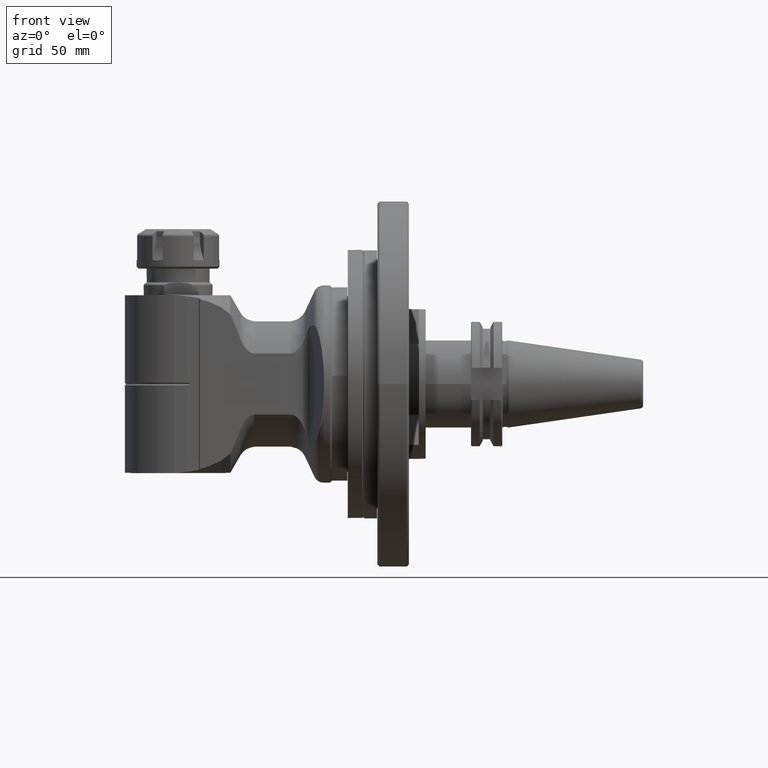
[diagram: clean part render]
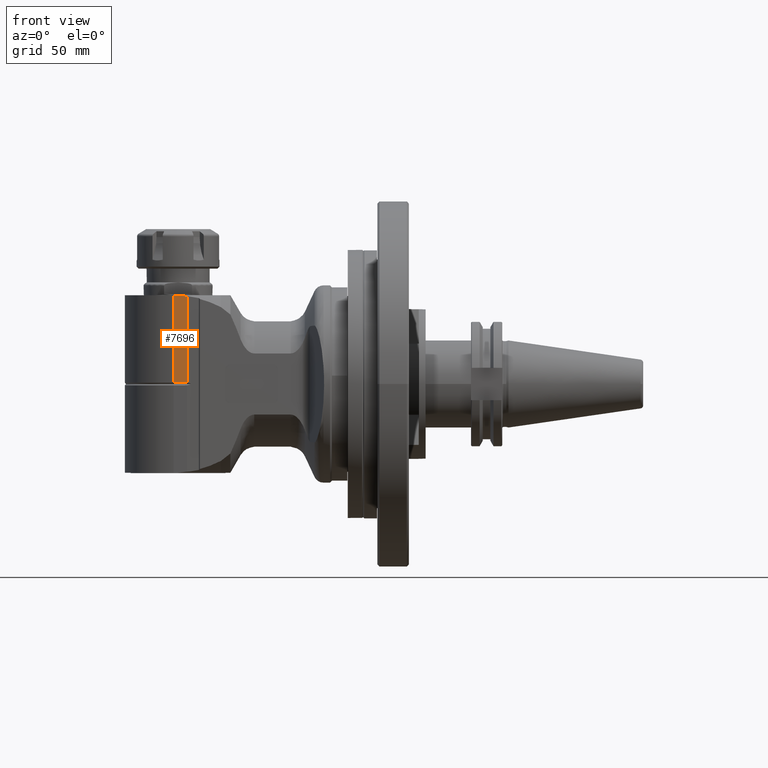
[diagram: same view with one face highlighted and labeled with its STEP entity id]
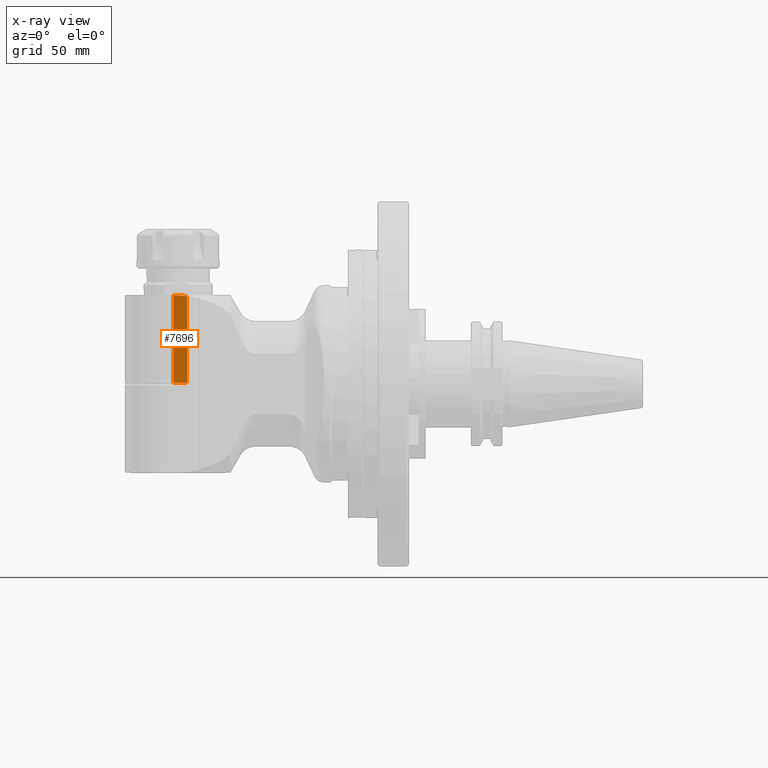
[diagram: x-ray of the same camera — body ghosted, the highlighted face saturated]
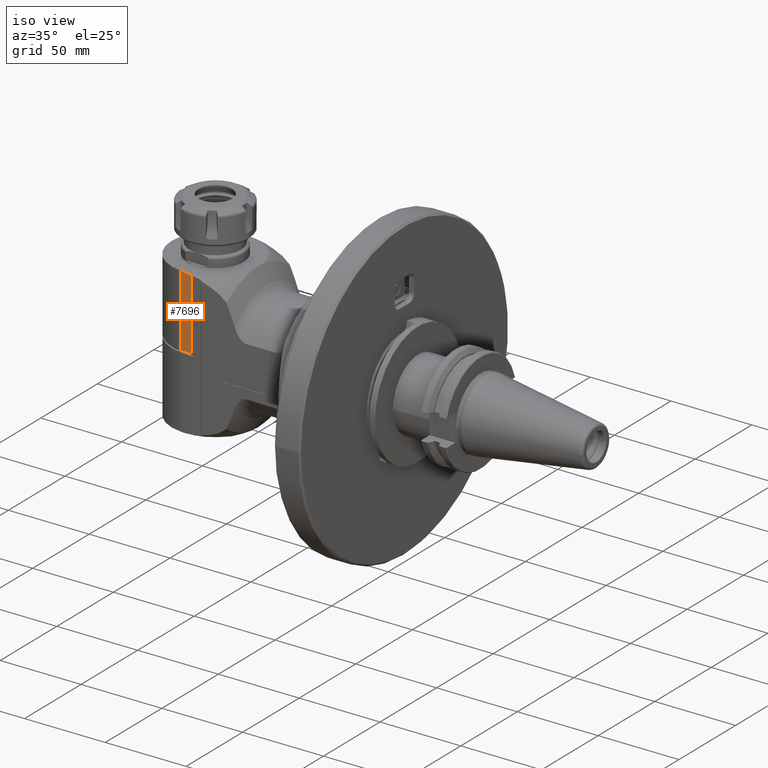
[diagram: same view with one face highlighted and labeled with its STEP entity id]
A machine part, front view. The second image highlights one B-rep face of the part: STEP entity #7696.
The next image is the same camera in x-ray: the body ghosted, the highlighted face saturated — about 0% of this face is hidden behind the body in this view.
A second angle (iso view) of the same face is appended — the face is thin or edge-on in the first view.
In plain terms, the highlighted planar face has unit normal (0.0872, 0.9962, 0).
Its self-contained STEP definition (entity closure, byte-faithful):
#58=ELLIPSE('',#8327,48.4219814319442,3.37928938793093);
#329=(
BOUNDED_CURVE()
B_SPLINE_CURVE(2,(#12290,#12291,#12292),.UNSPECIFIED.,.F.,.F.)
B_SPLINE_CURVE_WITH_KNOTS((3,3),(0.608380908929359,0.707686617776642),
 .UNSPECIFIED.)
CURVE()
GEOMETRIC_REPRESENTATION_ITEM()
RATIONAL_B_SPLINE_CURVE((1.05761844635315,1.05761844635306,1.05608326806202))
REPRESENTATION_ITEM('')
);
#1028=FACE_OUTER_BOUND('',#1517,.T.);
#1517=EDGE_LOOP('',(#5469,#5470,#5471,#5472,#5473,#5474));
#2021=LINE('',#11674,#2586);
#2075=LINE('',#12251,#2640);
#2078=LINE('',#12286,#2643);
#2079=LINE('',#12289,#2644);
#2586=VECTOR('',#9144,1.72459804313427);
#2640=VECTOR('',#9430,0.0779289582461455);
#2643=VECTOR('',#9439,1.74544545571063);
#2644=VECTOR('',#9442,0.236220472442952);
#3184=VERTEX_POINT('',#11669);
#3185=VERTEX_POINT('',#11673);
#3294=VERTEX_POINT('',#12248);
#3295=VERTEX_POINT('',#12250);
#3303=VERTEX_POINT('',#12284);
#3304=VERTEX_POINT('',#12288);
#3961=EDGE_CURVE('',#3185,#3184,#2021,.T.);
#4121=EDGE_CURVE('',#3294,#3295,#2075,.T.);
#4132=EDGE_CURVE('',#3303,#3294,#2078,.T.);
#4133=EDGE_CURVE('',#3303,#3304,#2079,.T.);
#4134=EDGE_CURVE('',#3304,#3185,#329,.T.);
#4135=EDGE_CURVE('',#3184,#3295,#58,.T.);
#5469=ORIENTED_EDGE('',*,*,#4132,.F.);
#5470=ORIENTED_EDGE('',*,*,#4133,.T.);
#5471=ORIENTED_EDGE('',*,*,#4134,.T.);
#5472=ORIENTED_EDGE('',*,*,#3961,.T.);
#5473=ORIENTED_EDGE('',*,*,#4135,.T.);
#5474=ORIENTED_EDGE('',*,*,#4121,.F.);
#7405=PLANE('',#8326);
#7696=ADVANCED_FACE('',(#1028),#7405,.F.);
#8326=AXIS2_PLACEMENT_3D('',#12287,#9440,#9441);
#8327=AXIS2_PLACEMENT_3D('',#12293,#9443,#9444);
#9144=DIRECTION('',(1.32764516878699E-7,-0.999999999999991,2.87918323241197E-9));
#9430=DIRECTION('',(-0.996194698091752,-1.43587821958393E-14,0.0871557427475858));
#9439=DIRECTION('',(2.75663110442E-14,-1.,0.));
#9440=DIRECTION('center_axis',(-0.087155742747664,0.,-0.996194698091745));
#9441=DIRECTION('ref_axis',(0.996194698091745,0.,-0.0871557427476639));
#9442=DIRECTION('',(-0.996194690015305,-1.85333008901101E-7,0.0871558350615505));
#9443=DIRECTION('center_axis',(0.087155742747664,0.,0.996194698091745));
#9444=DIRECTION('ref_axis',(-0.996194698091745,-5.05500958436285E-17,0.087155742747664));
#11669=CARTESIAN_POINT('',(3.2859771380763,-1.74943252039567,1.08267716535433));
#11673=CARTESIAN_POINT('',(3.2859769084351,-0.024834518340376,1.08267717043558));
#11674=CARTESIAN_POINT('',(3.28597690911094,-0.0248344772614409,1.08267716038898));
#12248=CARTESIAN_POINT('',(3.55721279740898,-1.77165354330709,1.0589471200189));
#12250=CARTESIAN_POINT('',(3.4795803823763,-1.77165354330709,1.0657390762563));
#12251=CARTESIAN_POINT('',(3.55721279740898,-1.77165354330709,1.0589471200189));
#12284=CARTESIAN_POINT('',(3.55721279740898,-0.0262080875964252,1.0589471200189));
#12286=CARTESIAN_POINT('',(3.55721279740898,-0.0262080875964252,1.0589471200189));
#12287=CARTESIAN_POINT('Origin',(2.67875787101173,-2.36220481889764,1.13580196749685));
#12288=CARTESIAN_POINT('',(3.32189121597587,-0.0262081113161359,1.07953509983855));
#12289=CARTESIAN_POINT('',(3.55721279740898,-0.0262080875964252,1.0589471200189));
#12290=CARTESIAN_POINT('Ctrl Pts',(3.32189121518056,-0.0262080875964391,
1.07953509074656));
#12291=CARTESIAN_POINT('Ctrl Pts',(3.30396012655108,-0.0262080875963641,
1.08110385772632));
#12292=CARTESIAN_POINT('Ctrl Pts',(3.28597690677091,-0.0248345574888156,
1.08267718559078));
#12293=CARTESIAN_POINT('Origin',(44.5565699694199,0.,-2.5280318443829));